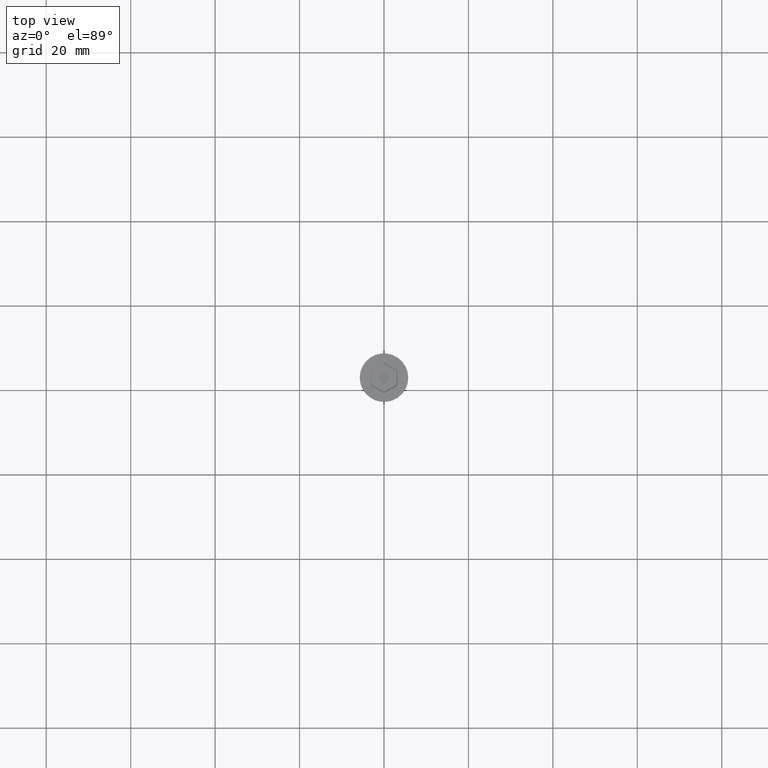
[diagram: clean part render]
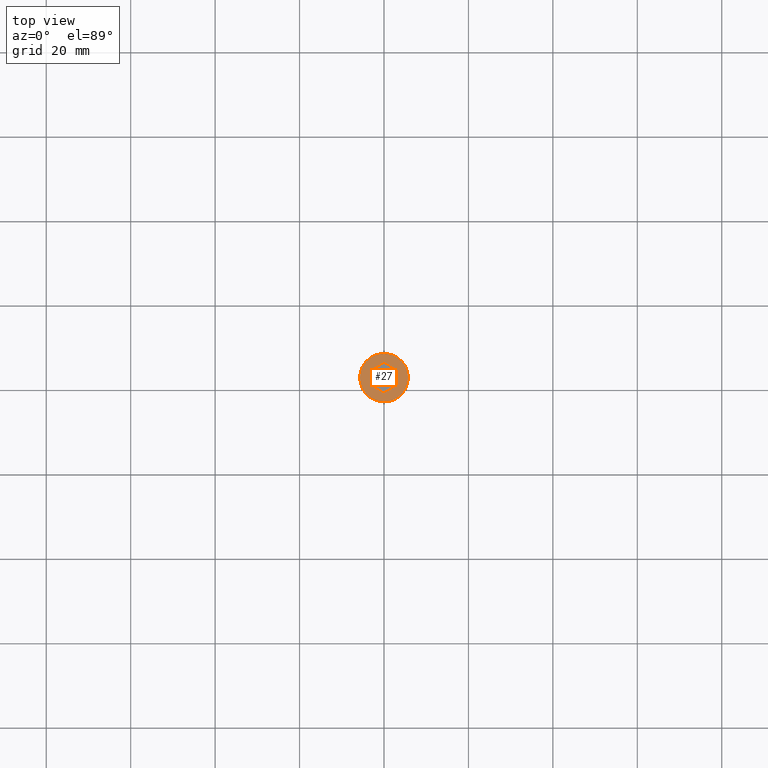
[diagram: same view with one face highlighted and labeled with its STEP entity id]
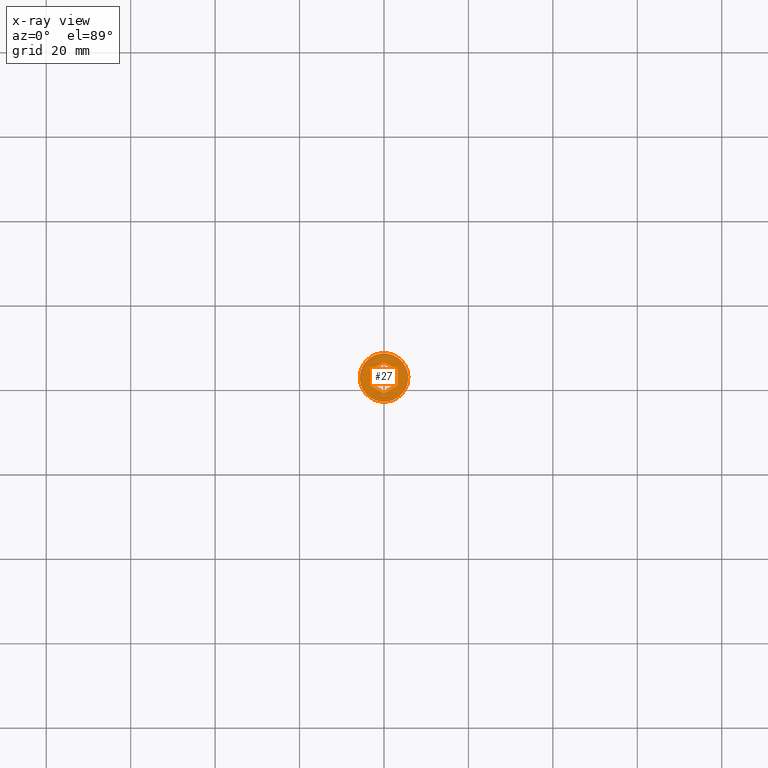
[diagram: x-ray of the same camera — body ghosted, the highlighted face saturated]
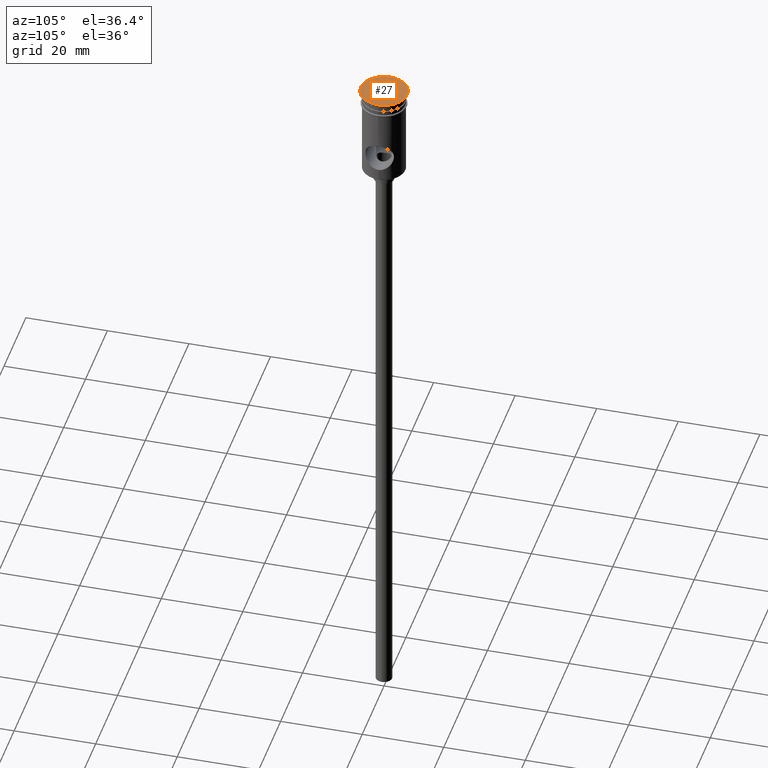
[diagram: same view with one face highlighted and labeled with its STEP entity id]
A machine part, top view. The second image highlights one B-rep face of the part: STEP entity #27.
The next image is the same camera in x-ray: the body ghosted, the highlighted face saturated — about 0% of this face is hidden behind the body in this view.
A second angle (auxiliary view) of the same face is appended — the face is thin or edge-on in the first view.
In plain terms, the highlighted planar face has unit normal (0, -0, 1).
Its self-contained STEP definition (entity closure, byte-faithful):
#25 = LINE ( 'NONE', #259, #644 ) ;
#27 = ADVANCED_FACE ( 'NONE', ( #1134, #120 ), #551, .T. ) ;
#107 = LINE ( 'NONE', #894, #492 ) ;
#120 = FACE_OUTER_BOUND ( 'NONE', #481, .T. ) ;
#122 = EDGE_CURVE ( 'NONE', #498, #212, #607, .T. ) ;
#186 = CARTESIAN_POINT ( 'NONE',  ( 3.149999999999978151, -1.703183294109396284, 0.000000000000000000 ) ) ;
#204 = CARTESIAN_POINT ( 'NONE',  ( 3.049999999999990052, 1.876388374866264863, 0.000000000000000000 ) ) ;
#212 = VERTEX_POINT ( 'NONE', #695 ) ;
#221 = VECTOR ( 'NONE', #224, 1000.000000000000114 ) ;
#224 = DIRECTION ( 'NONE',  ( -0.8660254037844385966, 0.5000000000000001110, 0.000000000000000000 ) ) ;
#259 = CARTESIAN_POINT ( 'NONE',  ( -3.149999999999978595, 1.703183294109395840, 0.000000000000000000 ) ) ;
#295 = EDGE_CURVE ( 'NONE', #1190, #338, #1328, .T. ) ;
#303 = VECTOR ( 'NONE', #993, 1000.000000000000114 ) ;
#310 = ORIENTED_EDGE ( 'NONE', *, *, #1315, .T. ) ;
#338 = VERTEX_POINT ( 'NONE', #1125 ) ;
#345 = CIRCLE ( 'NONE', #517, 5.750000000000000000 ) ;
#348 = AXIS2_PLACEMENT_3D ( 'NONE', #896, #1016, #1365 ) ;
#387 = EDGE_CURVE ( 'NONE', #465, #1384, #1242, .T. ) ;
#391 = VERTEX_POINT ( 'NONE', #558 ) ;
#465 = VERTEX_POINT ( 'NONE', #898 ) ;
#481 = EDGE_LOOP ( 'NONE', ( #1147, #870 ) ) ;
#492 = VECTOR ( 'NONE', #783, 1000.000000000000000 ) ;
#498 = VERTEX_POINT ( 'NONE', #836 ) ;
#504 = ORIENTED_EDGE ( 'NONE', *, *, #387, .T. ) ;
#517 = AXIS2_PLACEMENT_3D ( 'NONE', #880, #986, #762 ) ;
#546 = CARTESIAN_POINT ( 'NONE',  ( -3.049999999999989608, -1.876388374866265085, 0.000000000000000000 ) ) ;
#551 = PLANE ( 'NONE',  #348 ) ;
#558 = CARTESIAN_POINT ( 'NONE',  ( -3.163467028841980443E-16, 3.637306695894617192, 0.000000000000000000 ) ) ;
#568 = DIRECTION ( 'NONE',  ( 1.000000000000000000, 0.000000000000000000, 0.000000000000000000 ) ) ;
#607 = CIRCLE ( 'NONE', #1449, 5.750000000000000000 ) ;
#612 = ORIENTED_EDGE ( 'NONE', *, *, #763, .T. ) ;
#631 = CARTESIAN_POINT ( 'NONE',  ( -0.09999999999998937517, 3.579571668975661147, 0.000000000000000000 ) ) ;
#644 = VECTOR ( 'NONE', #1173, 1000.000000000000000 ) ;
#695 = CARTESIAN_POINT ( 'NONE',  ( 5.750000000000000000, 0.000000000000000000, 0.000000000000000000 ) ) ;
#712 = ORIENTED_EDGE ( 'NONE', *, *, #295, .T. ) ;
#762 = DIRECTION ( 'NONE',  ( 1.000000000000000000, 0.000000000000000000, 0.000000000000000000 ) ) ;
#763 = EDGE_CURVE ( 'NONE', #1384, #804, #25, .T. ) ;
#768 = LINE ( 'NONE', #631, #303 ) ;
#783 = DIRECTION ( 'NONE',  ( -0.8660254037844387076, -0.4999999999999998890, 0.000000000000000000 ) ) ;
#800 = DIRECTION ( 'NONE',  ( -0.000000000000000000, -0.000000000000000000, 1.000000000000000000 ) ) ;
#804 = VERTEX_POINT ( 'NONE', #1014 ) ;
#807 = EDGE_CURVE ( 'NONE', #338, #465, #107, .T. ) ;
#836 = CARTESIAN_POINT ( 'NONE',  ( -5.750000000000000000, 7.041719095097280880E-16, 0.000000000000000000 ) ) ;
#870 = ORIENTED_EDGE ( 'NONE', *, *, #122, .T. ) ;
#880 = CARTESIAN_POINT ( 'NONE',  ( 0.000000000000000000, 0.000000000000000000, 0.000000000000000000 ) ) ;
#894 = CARTESIAN_POINT ( 'NONE',  ( 0.09999999999998870903, -3.579571668975661591, 0.000000000000000000 ) ) ;
#896 = CARTESIAN_POINT ( 'NONE',  ( 0.000000000000000000, 0.000000000000000000, 0.000000000000000000 ) ) ;
#898 = CARTESIAN_POINT ( 'NONE',  ( -5.257856505504653693E-16, -3.637306695894617636, 0.000000000000000000 ) ) ;
#922 = EDGE_CURVE ( 'NONE', #804, #391, #768, .T. ) ;
#924 = CARTESIAN_POINT ( 'NONE',  ( -3.149999999999978595, -1.818653347947308818, 0.000000000000000000 ) ) ;
#928 = ORIENTED_EDGE ( 'NONE', *, *, #807, .T. ) ;
#986 = DIRECTION ( 'NONE',  ( -0.000000000000000000, -0.000000000000000000, 1.000000000000000000 ) ) ;
#992 = DIRECTION ( 'NONE',  ( -2.546295930062981593E-16, -1.000000000000000000, 0.000000000000000000 ) ) ;
#993 = DIRECTION ( 'NONE',  ( 0.8660254037844385966, 0.5000000000000001110, 0.000000000000000000 ) ) ;
#1000 = LINE ( 'NONE', #204, #1063 ) ;
#1012 = CARTESIAN_POINT ( 'NONE',  ( 3.149999999999979039, 1.818653347947308596, 0.000000000000000000 ) ) ;
#1014 = CARTESIAN_POINT ( 'NONE',  ( -3.149999999999978595, 1.818653347947308374, 0.000000000000000000 ) ) ;
#1016 = DIRECTION ( 'NONE',  ( 0.000000000000000000, -0.000000000000000000, 1.000000000000000000 ) ) ;
#1063 = VECTOR ( 'NONE', #1106, 1000.000000000000000 ) ;
#1095 = EDGE_LOOP ( 'NONE', ( #504, #612, #1342, #310, #712, #928 ) ) ;
#1106 = DIRECTION ( 'NONE',  ( 0.8660254037844387076, -0.4999999999999998890, 0.000000000000000000 ) ) ;
#1124 = CARTESIAN_POINT ( 'NONE',  ( 0.000000000000000000, 0.000000000000000000, 0.000000000000000000 ) ) ;
#1125 = CARTESIAN_POINT ( 'NONE',  ( 3.149999999999978151, -1.818653347947309262, 0.000000000000000000 ) ) ;
#1134 = FACE_BOUND ( 'NONE', #1095, .T. ) ;
#1147 = ORIENTED_EDGE ( 'NONE', *, *, #1151, .T. ) ;
#1151 = EDGE_CURVE ( 'NONE', #212, #498, #345, .T. ) ;
#1163 = VECTOR ( 'NONE', #992, 1000.000000000000000 ) ;
#1173 = DIRECTION ( 'NONE',  ( 0.000000000000000000, 1.000000000000000000, 0.000000000000000000 ) ) ;
#1190 = VERTEX_POINT ( 'NONE', #1012 ) ;
#1242 = LINE ( 'NONE', #546, #221 ) ;
#1315 = EDGE_CURVE ( 'NONE', #391, #1190, #1000, .T. ) ;
#1328 = LINE ( 'NONE', #186, #1163 ) ;
#1342 = ORIENTED_EDGE ( 'NONE', *, *, #922, .T. ) ;
#1365 = DIRECTION ( 'NONE',  ( 1.000000000000000000, 0.000000000000000000, 0.000000000000000000 ) ) ;
#1384 = VERTEX_POINT ( 'NONE', #924 ) ;
#1449 = AXIS2_PLACEMENT_3D ( 'NONE', #1124, #800, #568 ) ;